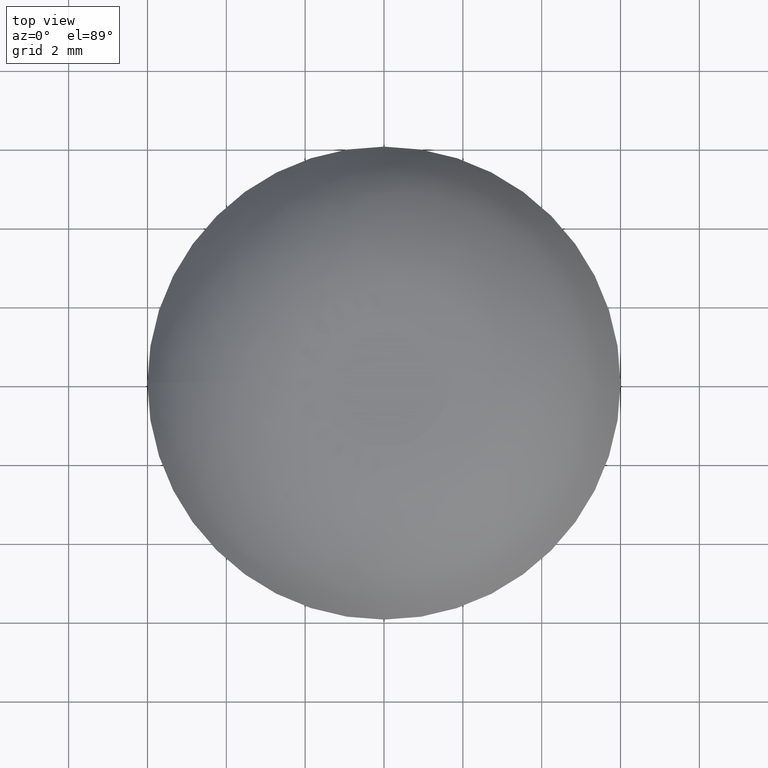
[diagram: clean part render]
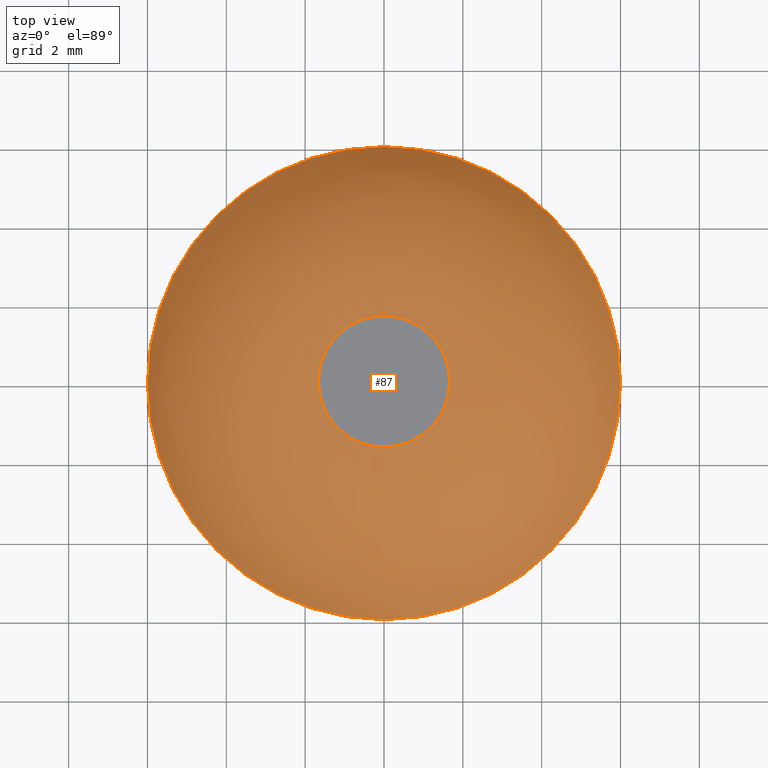
[diagram: same view with one face highlighted and labeled with its STEP entity id]
A machine part, top view. The second image highlights one B-rep face of the part: STEP entity #87.
In plain terms, the highlighted face is a freeform B-spline surface patch.
Its self-contained STEP definition (entity closure, byte-faithful):
#15=(
BOUNDED_CURVE()
B_SPLINE_CURVE(2,(#179,#180,#181),.UNSPECIFIED.,.F.,.F.)
B_SPLINE_CURVE_WITH_KNOTS((3,3),(-1.5707963267949,-0.523598775598299),
 .UNSPECIFIED.)
CURVE()
GEOMETRIC_REPRESENTATION_ITEM()
RATIONAL_B_SPLINE_CURVE((1.,0.866025403784438,1.))
REPRESENTATION_ITEM('')
);
#16=(
BOUNDED_SURFACE()
B_SPLINE_SURFACE(2,2,((#150,#151,#152,#153,#154,#155,#156,#157,#158),(#159,
#160,#161,#162,#163,#164,#165,#166,#167),(#168,#169,#170,#171,#172,#173,
#174,#175,#176)),.UNSPECIFIED.,.F.,.T.,.F.)
B_SPLINE_SURFACE_WITH_KNOTS((3,3),(3,2,2,2,3),(0.523598775598299,1.5707963267949),
(-3.14159265358979,-1.5707963267949,0.,1.5707963267949,3.14159265358979),
 .UNSPECIFIED.)
GEOMETRIC_REPRESENTATION_ITEM()
RATIONAL_B_SPLINE_SURFACE(((1.,0.707106781186548,1.,0.707106781186548,1.,
0.707106781186548,1.,0.707106781186548,1.),(0.866025403784438,0.612372435695794,
0.866025403784438,0.612372435695794,0.866025403784438,0.612372435695794,
0.866025403784438,0.612372435695794,0.866025403784438),(1.,0.707106781186548,
1.,0.707106781186548,1.,0.707106781186548,1.,0.707106781186548,1.)))
REPRESENTATION_ITEM('')
SURFACE()
);
#29=FACE_OUTER_BOUND('',#40,.T.);
#40=EDGE_LOOP('',(#74,#75,#76,#77,#78));
#47=CIRCLE('',#100,6.);
#48=CIRCLE('',#101,6.);
#49=CIRCLE('',#102,1.66987298107781);
#54=VERTEX_POINT('',#146);
#55=VERTEX_POINT('',#147);
#56=VERTEX_POINT('',#177);
#61=EDGE_CURVE('',#54,#55,#47,.T.);
#62=EDGE_CURVE('',#55,#54,#48,.T.);
#63=EDGE_CURVE('',#56,#56,#49,.T.);
#64=EDGE_CURVE('',#56,#55,#15,.T.);
#74=ORIENTED_EDGE('',*,*,#63,.T.);
#75=ORIENTED_EDGE('',*,*,#64,.T.);
#76=ORIENTED_EDGE('',*,*,#61,.F.);
#77=ORIENTED_EDGE('',*,*,#62,.F.);
#78=ORIENTED_EDGE('',*,*,#64,.F.);
#87=ADVANCED_FACE('',(#29),#16,.T.);
#100=AXIS2_PLACEMENT_3D('',#148,#123,#124);
#101=AXIS2_PLACEMENT_3D('',#149,#125,#126);
#102=AXIS2_PLACEMENT_3D('',#178,#127,#128);
#123=DIRECTION('center_axis',(0.,0.,-1.));
#124=DIRECTION('ref_axis',(-1.,0.,0.));
#125=DIRECTION('center_axis',(0.,0.,-1.));
#126=DIRECTION('ref_axis',(-1.,0.,0.));
#127=DIRECTION('center_axis',(0.,0.,-1.));
#128=DIRECTION('ref_axis',(1.,0.,0.));
#146=CARTESIAN_POINT('',(6.,7.34788079488412E-16,0.));
#147=CARTESIAN_POINT('',(-6.,0.,0.));
#148=CARTESIAN_POINT('Origin',(0.,0.,0.));
#149=CARTESIAN_POINT('Origin',(0.,0.,0.));
#150=CARTESIAN_POINT('Ctrl Pts',(-6.,0.,0.));
#151=CARTESIAN_POINT('Ctrl Pts',(-6.,6.,0.));
#152=CARTESIAN_POINT('Ctrl Pts',(0.,6.,0.));
#153=CARTESIAN_POINT('Ctrl Pts',(6.,6.,0.));
#154=CARTESIAN_POINT('Ctrl Pts',(6.,0.,0.));
#155=CARTESIAN_POINT('Ctrl Pts',(6.,-6.,0.));
#156=CARTESIAN_POINT('Ctrl Pts',(0.,-6.,0.));
#157=CARTESIAN_POINT('Ctrl Pts',(-6.,-6.,0.));
#158=CARTESIAN_POINT('Ctrl Pts',(-6.,0.,0.));
#159=CARTESIAN_POINT('Ctrl Pts',(-4.55662432702594,0.,2.5));
#160=CARTESIAN_POINT('Ctrl Pts',(-4.55662432702593,4.55662432702593,2.5));
#161=CARTESIAN_POINT('Ctrl Pts',(0.,4.55662432702594,2.5));
#162=CARTESIAN_POINT('Ctrl Pts',(4.55662432702593,4.55662432702593,2.5));
#163=CARTESIAN_POINT('Ctrl Pts',(4.55662432702594,0.,2.5));
#164=CARTESIAN_POINT('Ctrl Pts',(4.55662432702593,-4.55662432702593,2.5));
#165=CARTESIAN_POINT('Ctrl Pts',(0.,-4.55662432702594,2.5));
#166=CARTESIAN_POINT('Ctrl Pts',(-4.55662432702593,-4.55662432702593,2.5));
#167=CARTESIAN_POINT('Ctrl Pts',(-4.55662432702594,0.,2.5));
#168=CARTESIAN_POINT('Ctrl Pts',(-1.66987298107781,0.,2.5));
#169=CARTESIAN_POINT('Ctrl Pts',(-1.66987298107781,1.66987298107781,2.5));
#170=CARTESIAN_POINT('Ctrl Pts',(0.,1.66987298107781,2.5));
#171=CARTESIAN_POINT('Ctrl Pts',(1.66987298107781,1.66987298107781,2.5));
#172=CARTESIAN_POINT('Ctrl Pts',(1.66987298107781,0.,2.5));
#173=CARTESIAN_POINT('Ctrl Pts',(1.66987298107781,-1.66987298107781,2.5));
#174=CARTESIAN_POINT('Ctrl Pts',(0.,-1.66987298107781,2.5));
#175=CARTESIAN_POINT('Ctrl Pts',(-1.66987298107781,-1.66987298107781,2.5));
#176=CARTESIAN_POINT('Ctrl Pts',(-1.66987298107781,0.,2.5));
#177=CARTESIAN_POINT('',(-1.66987298107781,2.04500460125959E-16,2.5));
#178=CARTESIAN_POINT('Origin',(0.,0.,2.5));
#179=CARTESIAN_POINT('Ctrl Pts',(-1.66987298107781,0.,2.5));
#180=CARTESIAN_POINT('Ctrl Pts',(-4.55662432702594,0.,2.5));
#181=CARTESIAN_POINT('Ctrl Pts',(-6.,0.,0.));